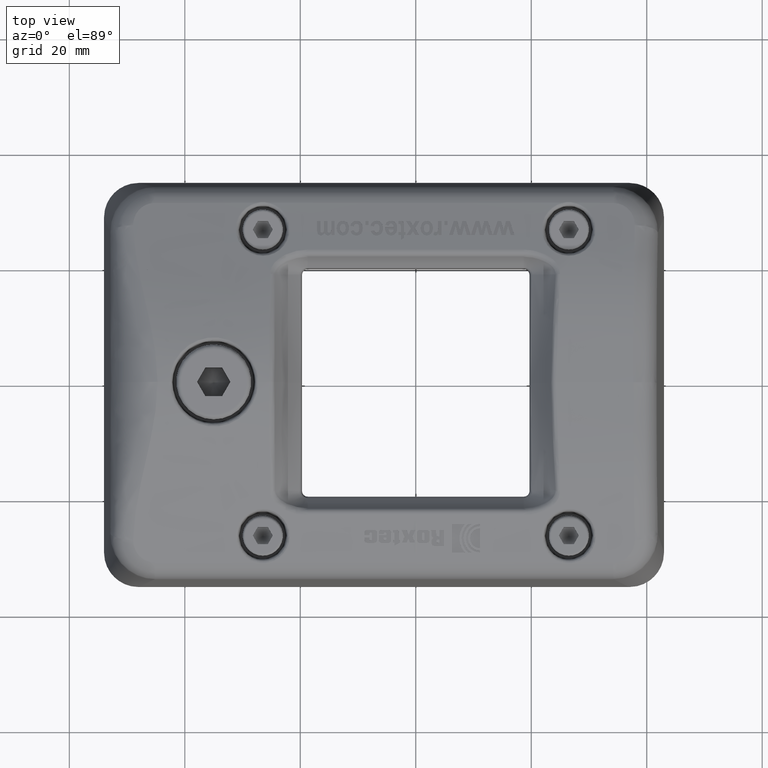
[diagram: clean part render]
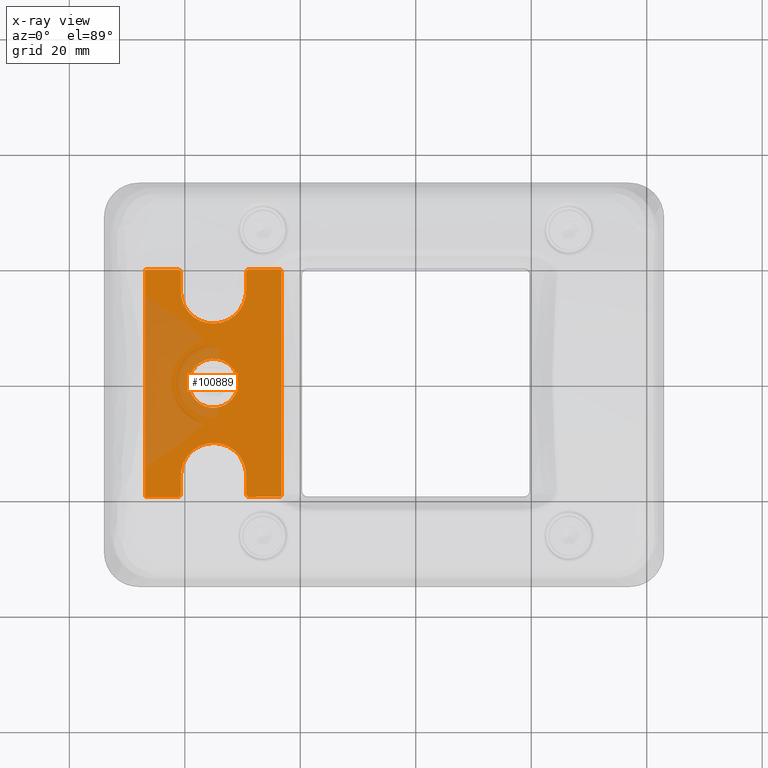
[diagram: x-ray — body ghosted, one internal face saturated and labeled with its STEP entity id]
A machine part, top view, then the same camera in x-ray: the body is ghosted and one INTERNAL B-rep face — a face not visible from any outside direction — is saturated and labeled: STEP entity #100889.
In plain terms, the highlighted planar face has unit normal (0.1736, -0, -0.9848).
Its self-contained STEP definition (entity closure, byte-faithful):
#100500=CARTESIAN_POINT('',(-28.88723744500874,19.700000000000003,-2.507853244163001));
#100501=VERTEX_POINT('',#100500);
#100502=CARTESIAN_POINT('',(-23.537115605238732,19.700000000000003,-1.564482413734001));
#100503=VERTEX_POINT('',#100502);
#100504=CARTESIAN_POINT('',(-28.88723744500874,19.700000000000003,-2.507853244163001));
#100505=DIRECTION('',(0.984807753012213,0.0,0.173648177666903));
#100506=VECTOR('',#100505,5.432656092933582);
#100507=LINE('',#100504,#100506);
#100508=EDGE_CURVE('',#100501,#100503,#100507,.T.);
#100599=CARTESIAN_POINT('',(-41.187085141648737,19.700000000000003,-4.676648251687003));
#100600=VERTEX_POINT('',#100599);
#100607=CARTESIAN_POINT('',(-46.864842272338734,19.700000000000003,-5.677790023736002));
#100608=VERTEX_POINT('',#100607);
#100609=CARTESIAN_POINT('',(-46.864842272338734,19.700000000000003,-5.677790023736002));
#100610=DIRECTION('',(0.984807753012213,0.0,0.173648177666902));
#100611=VECTOR('',#100610,5.765345686326413);
#100612=LINE('',#100609,#100611);
#100613=EDGE_CURVE('',#100608,#100600,#100612,.T.);
#100640=CARTESIAN_POINT('',(-23.237161300618734,19.399121071710002,-1.51159237685));
#100641=VERTEX_POINT('',#100640);
#100648=CARTESIAN_POINT('',(-23.537115605238732,19.700000000000003,-1.564482413734001));
#100649=CARTESIAN_POINT('',(-23.487427088078732,19.700000000000003,-1.555720987528001));
#100650=CARTESIAN_POINT('',(-23.409329994698744,19.678391781670005,-1.541950362849));
#100651=CARTESIAN_POINT('',(-23.321061391408733,19.616656942550005,-1.526386226541001));
#100652=CARTESIAN_POINT('',(-23.259102379888745,19.528206643820003,-1.515461181111001));
#100653=CARTESIAN_POINT('',(-23.237161300618734,19.449576114340005,-1.51159237685));
#100654=CARTESIAN_POINT('',(-23.237161300618734,19.399121071710002,-1.51159237685));
#100655=B_SPLINE_CURVE_WITH_KNOTS('',3,(#100648,#100649,#100650,#100651,#100652,#100653,#100654),.UNSPECIFIED.,.F.,.U.,(4,1,1,1,4),(0.0,0.25,0.5,0.75,1.0),.UNSPECIFIED.);
#100656=EDGE_CURVE('',#100503,#100641,#100655,.T.);
#100661=CARTESIAN_POINT('',(-48.046226320924603,21.670000000000002,-5.886099906081031));
#100662=DIRECTION('',(0.173648177666902,-5.328091E-032,-0.984807753012213));
#100663=DIRECTION('',(-0.984807753012213,1.220328E-031,-0.173648177666902));
#100664=AXIS2_PLACEMENT_3D('',#100661,#100662,#100663);
#100665=PLANE('',#100664);
#100666=ORIENTED_EDGE('',*,*,#100613,.T.);
#100667=CARTESIAN_POINT('',(-40.68716130061874,19.198535119510005,-4.588498190213002));
#100668=VERTEX_POINT('',#100667);
#100669=CARTESIAN_POINT('',(-41.187085141648737,19.700000000000003,-4.676648251687003));
#100670=CARTESIAN_POINT('',(-41.104270946388738,19.700000000000003,-4.662045874675002));
#100671=CARTESIAN_POINT('',(-40.974109124078737,19.663986302790004,-4.639094833545003));
#100672=CARTESIAN_POINT('',(-40.826994785278742,19.561094904250005,-4.613154606364002));
#100673=CARTESIAN_POINT('',(-40.723729766058739,19.413677739690005,-4.594946197313003));
#100674=CARTESIAN_POINT('',(-40.68716130061874,19.282626857230003,-4.588498190213002));
#100675=CARTESIAN_POINT('',(-40.68716130061874,19.198535119510005,-4.588498190213002));
#100676=B_SPLINE_CURVE_WITH_KNOTS('',3,(#100669,#100670,#100671,#100672,#100673,#100674,#100675),.UNSPECIFIED.,.F.,.U.,(4,1,1,1,4),(0.0,0.25,0.5,0.75,1.0),.UNSPECIFIED.);
#100677=EDGE_CURVE('',#100600,#100668,#100676,.T.);
#100678=ORIENTED_EDGE('',*,*,#100677,.T.);
#100679=CARTESIAN_POINT('',(-40.68716130061874,16.000000000770005,-4.588498190213002));
#100680=VERTEX_POINT('',#100679);
#100681=CARTESIAN_POINT('',(-40.68716130061874,19.198535119510005,-4.588498190213002));
#100682=DIRECTION('',(0.0,-1.0,0.0));
#100683=VECTOR('',#100682,3.198535118740001);
#100684=LINE('',#100681,#100683);
#100685=EDGE_CURVE('',#100668,#100680,#100684,.T.);
#100686=ORIENTED_EDGE('',*,*,#100685,.T.);
#100687=CARTESIAN_POINT('',(-29.387161300618736,16.000000000760004,-2.596003308207001));
#100688=VERTEX_POINT('',#100687);
#100689=CARTESIAN_POINT('',(-40.68716130061874,16.000000000770005,-4.588498190213002));
#100690=CARTESIAN_POINT('',(-40.687161300708745,15.334141115110002,-4.588498190229002));
#100691=CARTESIAN_POINT('',(-40.504322761178742,14.255751811850006,-4.556258822597003));
#100692=CARTESIAN_POINT('',(-39.801803903318735,12.889827949820003,-4.432385793500002));
#100693=CARTESIAN_POINT('',(-39.061206975648744,11.976006717120002,-4.301798573321002));
#100694=CARTESIAN_POINT('',(-38.147255881648732,11.235225301120003,-4.140644336401001));
#100695=CARTESIAN_POINT('',(-37.123147942608739,10.708944248990003,-3.960066475590002));
#100696=CARTESIAN_POINT('',(-36.238466996048743,10.459135955900003,-3.804073355394002));
#100697=CARTESIAN_POINT('',(-35.541887459068732,10.364740434970003,-3.681247588813002));
#100698=CARTESIAN_POINT('',(-35.037161300618735,10.342629782520001,-3.592250749211002));
#100699=CARTESIAN_POINT('',(-34.532435142178741,10.364740434960002,-3.503253909608002));
#100700=CARTESIAN_POINT('',(-33.835855605198745,10.459135955900003,-3.380428143028002));
#100701=CARTESIAN_POINT('',(-32.951174658638735,10.708944248990003,-3.224435022832002));
#100702=CARTESIAN_POINT('',(-31.927066719598738,11.235225301120003,-3.043857162021002));
#100703=CARTESIAN_POINT('',(-31.013115625588732,11.976006717110003,-2.882702925100001));
#100704=CARTESIAN_POINT('',(-30.272518697918738,12.889827949810005,-2.752115704921001));
#100705=CARTESIAN_POINT('',(-29.569999840058738,14.255751811840003,-2.628242675824002));
#100706=CARTESIAN_POINT('',(-29.387161300528746,15.334141115100001,-2.596003308191002));
#100707=CARTESIAN_POINT('',(-29.387161300618736,16.000000000760004,-2.596003308207001));
#100708=B_SPLINE_CURVE_WITH_KNOTS('',3,(#100689,#100690,#100691,#100692,#100693,#100694,#100695,#100696,#100697,#100698,#100699,#100700,#100701,#100702,#100703,#100704,#100705,#100706,#100707),.UNSPECIFIED.,.F.,.U.,(4,1,1,1,1,1,1,1,1,1,1,1,1,1,1,1,4),(0.0,0.125,0.1875,0.25,0.3125,0.375,0.4375,0.46875,0.5,0.53125,0.5625,0.625,0.6875,0.75,0.8125,0.875,1.0),.UNSPECIFIED.);
#100709=EDGE_CURVE('',#100680,#100688,#100708,.T.);
#100710=ORIENTED_EDGE('',*,*,#100709,.T.);
#100711=CARTESIAN_POINT('',(-29.387161300618736,19.201612449640006,-2.596003308207001));
#100712=VERTEX_POINT('',#100711);
#100713=CARTESIAN_POINT('',(-29.387161300618736,19.201612449640006,-2.596003308207001));
#100714=DIRECTION('',(0.0,-1.0,0.0));
#100715=VECTOR('',#100714,3.201612448880002);
#100716=LINE('',#100713,#100715);
#100717=EDGE_CURVE('',#100712,#100688,#100716,.T.);
#100718=ORIENTED_EDGE('',*,*,#100717,.F.);
#100719=CARTESIAN_POINT('',(-29.387161300618736,19.201612449640006,-2.596003308207001));
#100720=CARTESIAN_POINT('',(-29.387161300618736,19.285447744410007,-2.596003308207001));
#100721=CARTESIAN_POINT('',(-29.350572846168738,19.415965443620003,-2.589551776505001));
#100722=CARTESIAN_POINT('',(-29.247189434088732,19.562493060090006,-2.571322491599001));
#100723=CARTESIAN_POINT('',(-29.099981430088739,19.664520019660007,-2.545365748717001));
#100724=CARTESIAN_POINT('',(-28.969799093278734,19.700000000000003,-2.522411090325001));
#100725=CARTESIAN_POINT('',(-28.88723744500874,19.700000000000003,-2.507853244163001));
#100726=B_SPLINE_CURVE_WITH_KNOTS('',3,(#100719,#100720,#100721,#100722,#100723,#100724,#100725),.UNSPECIFIED.,.F.,.U.,(4,1,1,1,4),(0.0,0.25,0.5,0.75,1.0),.UNSPECIFIED.);
#100727=EDGE_CURVE('',#100712,#100501,#100726,.T.);
#100728=ORIENTED_EDGE('',*,*,#100727,.T.);
#100729=ORIENTED_EDGE('',*,*,#100508,.T.);
#100730=ORIENTED_EDGE('',*,*,#100656,.T.);
#100731=CARTESIAN_POINT('',(-23.237161300618734,-19.399121071710002,-1.51159237685));
#100732=VERTEX_POINT('',#100731);
#100733=CARTESIAN_POINT('',(-23.237161300618734,19.399121071710002,-1.51159237685));
#100734=DIRECTION('',(0.0,-1.0,0.0));
#100735=VECTOR('',#100734,38.798242143420005);
#100736=LINE('',#100733,#100735);
#100737=EDGE_CURVE('',#100641,#100732,#100736,.T.);
#100738=ORIENTED_EDGE('',*,*,#100737,.T.);
#100739=CARTESIAN_POINT('',(-23.537115605238732,-19.700000000000003,-1.564482413734001));
#100740=VERTEX_POINT('',#100739);
#100741=CARTESIAN_POINT('',(-23.537115605238732,-19.700000000000003,-1.564482413734001));
#100742=CARTESIAN_POINT('',(-23.487427088078732,-19.700000000000003,-1.555720987528001));
#100743=CARTESIAN_POINT('',(-23.409329994698744,-19.678391781670005,-1.541950362849));
#100744=CARTESIAN_POINT('',(-23.321061391408733,-19.616656942550005,-1.526386226541001));
#100745=CARTESIAN_POINT('',(-23.259102379888745,-19.528206643820003,-1.515461181111001));
#100746=CARTESIAN_POINT('',(-23.237161300618734,-19.449576114340005,-1.51159237685));
#100747=CARTESIAN_POINT('',(-23.237161300618734,-19.399121071710002,-1.51159237685));
#100748=B_SPLINE_CURVE_WITH_KNOTS('',3,(#100741,#100742,#100743,#100744,#100745,#100746,#100747),.UNSPECIFIED.,.F.,.U.,(4,1,1,1,4),(0.0,0.25,0.5,0.75,1.0),.UNSPECIFIED.);
#100749=EDGE_CURVE('',#100740,#100732,#100748,.T.);
#100750=ORIENTED_EDGE('',*,*,#100749,.F.);
#100751=CARTESIAN_POINT('',(-28.88723744500874,-19.700000000000003,-2.507853244163001));
#100752=VERTEX_POINT('',#100751);
#100753=CARTESIAN_POINT('',(-28.88723744500874,-19.700000000000003,-2.507853244163001));
#100754=DIRECTION('',(0.984807753012213,0.0,0.173648177666903));
#100755=VECTOR('',#100754,5.432656092933582);
#100756=LINE('',#100753,#100755);
#100757=EDGE_CURVE('',#100752,#100740,#100756,.T.);
#100758=ORIENTED_EDGE('',*,*,#100757,.F.);
#100759=CARTESIAN_POINT('',(-29.387161300618736,-19.201612449640006,-2.596003308207001));
#100760=VERTEX_POINT('',#100759);
#100761=CARTESIAN_POINT('',(-29.387161300618736,-19.201612449640006,-2.596003308207001));
#100762=CARTESIAN_POINT('',(-29.387161300618736,-19.285447744410007,-2.596003308207001));
#100763=CARTESIAN_POINT('',(-29.350572846168738,-19.415965443620003,-2.589551776505001));
#100764=CARTESIAN_POINT('',(-29.247189434088732,-19.562493060090006,-2.571322491599001));
#100765=CARTESIAN_POINT('',(-29.099981430088739,-19.664520019660007,-2.545365748717001));
#100766=CARTESIAN_POINT('',(-28.969799093278734,-19.700000000000003,-2.522411090325001));
#100767=CARTESIAN_POINT('',(-28.88723744500874,-19.700000000000003,-2.507853244163001));
#100768=B_SPLINE_CURVE_WITH_KNOTS('',3,(#100761,#100762,#100763,#100764,#100765,#100766,#100767),.UNSPECIFIED.,.F.,.U.,(4,1,1,1,4),(0.0,0.25,0.5,0.75,1.0),.UNSPECIFIED.);
#100769=EDGE_CURVE('',#100760,#100752,#100768,.T.);
#100770=ORIENTED_EDGE('',*,*,#100769,.F.);
#100771=CARTESIAN_POINT('',(-29.387161300618736,-16.000000000760004,-2.596003308207001));
#100772=VERTEX_POINT('',#100771);
#100773=CARTESIAN_POINT('',(-29.387161300618736,-19.201612449640006,-2.596003308207001));
#100774=DIRECTION('',(0.0,1.0,0.0));
#100775=VECTOR('',#100774,3.201612448880002);
#100776=LINE('',#100773,#100775);
#100777=EDGE_CURVE('',#100760,#100772,#100776,.T.);
#100778=ORIENTED_EDGE('',*,*,#100777,.T.);
#100779=CARTESIAN_POINT('',(-40.68716130061874,-16.000000000770005,-4.588498190213002));
#100780=VERTEX_POINT('',#100779);
#100781=CARTESIAN_POINT('',(-40.68716130061874,-16.000000000770005,-4.588498190213002));
#100782=CARTESIAN_POINT('',(-40.687161300708745,-15.334141115110002,-4.588498190229002));
#100783=CARTESIAN_POINT('',(-40.504322761178742,-14.255751811850006,-4.556258822597003));
#100784=CARTESIAN_POINT('',(-39.801803903318735,-12.889827949820003,-4.432385793500002));
#100785=CARTESIAN_POINT('',(-39.061206975648744,-11.976006717120002,-4.301798573321002));
#100786=CARTESIAN_POINT('',(-38.147255881648732,-11.235225301120003,-4.140644336401001));
#100787=CARTESIAN_POINT('',(-37.123147942608739,-10.708944248990003,-3.960066475590002));
#100788=CARTESIAN_POINT('',(-36.238466996048743,-10.459135955900003,-3.804073355394002));
#100789=CARTESIAN_POINT('',(-35.541887459068732,-10.364740434970003,-3.681247588813002));
#100790=CARTESIAN_POINT('',(-35.037161300618735,-10.342629782520001,-3.592250749211002));
#100791=CARTESIAN_POINT('',(-34.532435142178741,-10.364740434960002,-3.503253909608002));
#100792=CARTESIAN_POINT('',(-33.835855605198745,-10.459135955900003,-3.380428143028002));
#100793=CARTESIAN_POINT('',(-32.951174658638735,-10.708944248990003,-3.224435022832002));
#100794=CARTESIAN_POINT('',(-31.927066719598738,-11.235225301120003,-3.043857162021002));
#100795=CARTESIAN_POINT('',(-31.013115625588732,-11.976006717110003,-2.882702925100001));
#100796=CARTESIAN_POINT('',(-30.272518697918738,-12.889827949810005,-2.752115704921001));
#100797=CARTESIAN_POINT('',(-29.569999840058738,-14.255751811840003,-2.628242675824002));
#100798=CARTESIAN_POINT('',(-29.387161300528746,-15.334141115100001,-2.596003308191002));
#100799=CARTESIAN_POINT('',(-29.387161300618736,-16.000000000760004,-2.596003308207001));
#100800=B_SPLINE_CURVE_WITH_KNOTS('',3,(#100781,#100782,#100783,#100784,#100785,#100786,#100787,#100788,#100789,#100790,#100791,#100792,#100793,#100794,#100795,#100796,#100797,#100798,#100799),.UNSPECIFIED.,.F.,.U.,(4,1,1,1,1,1,1,1,1,1,1,1,1,1,1,1,4),(0.0,0.125,0.1875,0.25,0.3125,0.375,0.4375,0.46875,0.5,0.53125,0.5625,0.625,0.6875,0.75,0.8125,0.875,1.0),.UNSPECIFIED.);
#100801=EDGE_CURVE('',#100780,#100772,#100800,.T.);
#100802=ORIENTED_EDGE('',*,*,#100801,.F.);
#100803=CARTESIAN_POINT('',(-40.68716130061874,-19.198535119510005,-4.588498190213002));
#100804=VERTEX_POINT('',#100803);
#100805=CARTESIAN_POINT('',(-40.68716130061874,-19.198535119510005,-4.588498190213002));
#100806=DIRECTION('',(0.0,1.0,0.0));
#100807=VECTOR('',#100806,3.198535118740001);
#100808=LINE('',#100805,#100807);
#100809=EDGE_CURVE('',#100804,#100780,#100808,.T.);
#100810=ORIENTED_EDGE('',*,*,#100809,.F.);
#100811=CARTESIAN_POINT('',(-41.187085141648737,-19.700000000000003,-4.676648251687003));
#100812=VERTEX_POINT('',#100811);
#100813=CARTESIAN_POINT('',(-41.187085141648737,-19.700000000000003,-4.676648251687003));
#100814=CARTESIAN_POINT('',(-41.104270946388738,-19.700000000000003,-4.662045874675002));
#100815=CARTESIAN_POINT('',(-40.974109124078737,-19.663986302790004,-4.639094833545003));
#100816=CARTESIAN_POINT('',(-40.826994785278742,-19.561094904250005,-4.613154606364002));
#100817=CARTESIAN_POINT('',(-40.723729766058739,-19.413677739690005,-4.594946197313003));
#100818=CARTESIAN_POINT('',(-40.68716130061874,-19.282626857230003,-4.588498190213002));
#100819=CARTESIAN_POINT('',(-40.68716130061874,-19.198535119510005,-4.588498190213002));
#100820=B_SPLINE_CURVE_WITH_KNOTS('',3,(#100813,#100814,#100815,#100816,#100817,#100818,#100819),.UNSPECIFIED.,.F.,.U.,(4,1,1,1,4),(0.0,0.25,0.5,0.75,1.0),.UNSPECIFIED.);
#100821=EDGE_CURVE('',#100812,#100804,#100820,.T.);
#100822=ORIENTED_EDGE('',*,*,#100821,.F.);
#100823=CARTESIAN_POINT('',(-46.864842272338734,-19.700000000000003,-5.677790023736002));
#100824=VERTEX_POINT('',#100823);
#100825=CARTESIAN_POINT('',(-46.864842272338734,-19.700000000000003,-5.677790023736002));
#100826=DIRECTION('',(0.984807753012213,0.0,0.173648177666902));
#100827=VECTOR('',#100826,5.765345686326413);
#100828=LINE('',#100825,#100827);
#100829=EDGE_CURVE('',#100824,#100812,#100828,.T.);
#100830=ORIENTED_EDGE('',*,*,#100829,.F.);
#100831=CARTESIAN_POINT('',(-46.864842272338734,-19.700000000000003,-5.677790023736002));
#100832=DIRECTION('',(0.0,1.0,0.0));
#100833=VECTOR('',#100832,39.400000000000006);
#100834=LINE('',#100831,#100833);
#100835=EDGE_CURVE('',#100824,#100608,#100834,.T.);
#100836=ORIENTED_EDGE('',*,*,#100835,.T.);
#100837=EDGE_LOOP('',(#100666,#100678,#100686,#100710,#100718,#100728,#100729,#100730,#100738,#100750,#100758,#100770,#100778,#100802,#100810,#100822,#100830,#100836));
#100838=FACE_OUTER_BOUND('',#100837,.T.);
#100839=CARTESIAN_POINT('',(-30.787161300618735,3.182012E-014,-2.842861081199002));
#100840=VERTEX_POINT('',#100839);
#100841=CARTESIAN_POINT('',(-39.287161300618735,-3.446209E-014,-4.341640417221003));
#100842=VERTEX_POINT('',#100841);
#100843=CARTESIAN_POINT('',(-30.787161300618735,9.488941E-014,-2.842861081199002));
#100844=CARTESIAN_POINT('',(-30.787161300618735,-0.5008673033404,-2.842861081199002));
#100845=CARTESIAN_POINT('',(-30.924694715398733,-1.312045097742,-2.867111932974001));
#100846=CARTESIAN_POINT('',(-31.453138104108742,-2.339509949563001,-2.960290760180002));
#100847=CARTESIAN_POINT('',(-32.010224288638739,-3.026897602370001,-3.058520085093002));
#100848=CARTESIAN_POINT('',(-32.69770962479874,-3.584122561212002,-3.179742298700002));
#100849=CARTESIAN_POINT('',(-33.468056304558743,-3.979997688855001,-3.315575202839001));
#100850=CARTESIAN_POINT('',(-34.133524273148737,-4.167906581858001,-3.432915160500001));
#100851=CARTESIAN_POINT('',(-34.657500031018742,-4.238912062196001,-3.525306223850002));
#100852=CARTESIAN_POINT('',(-35.037161300618735,-4.255543968902002,-3.592250749210002));
#100853=CARTESIAN_POINT('',(-35.416822570218741,-4.238912062196001,-3.659195274570002));
#100854=CARTESIAN_POINT('',(-35.940798328088732,-4.167906581858001,-3.751586337920001));
#100855=CARTESIAN_POINT('',(-36.60626629667874,-3.979997688855001,-3.868926295581002));
#100856=CARTESIAN_POINT('',(-37.376612976438736,-3.584122561213001,-4.004759199721001));
#100857=CARTESIAN_POINT('',(-38.06409831259873,-3.026897602370001,-4.125981413327001));
#100858=CARTESIAN_POINT('',(-38.621184497128738,-2.339509949563001,-4.224210738240003));
#100859=CARTESIAN_POINT('',(-39.14962788583874,-1.312045097742,-4.317389565446002));
#100860=CARTESIAN_POINT('',(-39.287161300618735,-0.5008673033406,-4.341640417221003));
#100861=CARTESIAN_POINT('',(-39.287161300618735,-1.030287E-013,-4.341640417221003));
#100862=B_SPLINE_CURVE_WITH_KNOTS('',3,(#100843,#100844,#100845,#100846,#100847,#100848,#100849,#100850,#100851,#100852,#100853,#100854,#100855,#100856,#100857,#100858,#100859,#100860,#100861),.UNSPECIFIED.,.F.,.U.,(4,1,1,1,1,1,1,1,1,1,1,1,1,1,1,1,4),(0.0,0.125,0.1875,0.25,0.3125,0.375,0.4375,0.46875,0.5,0.53125,0.5625,0.625,0.6875,0.75,0.8125,0.875,1.0),.UNSPECIFIED.);
#100863=EDGE_CURVE('',#100840,#100842,#100862,.T.);
#100864=ORIENTED_EDGE('',*,*,#100863,.F.);
#100865=CARTESIAN_POINT('',(-30.787161300618735,9.488941E-014,-2.842861081199002));
#100866=CARTESIAN_POINT('',(-30.787161300618735,0.5008673033406,-2.842861081199002));
#100867=CARTESIAN_POINT('',(-30.924694715398733,1.312045097742,-2.867111932974001));
#100868=CARTESIAN_POINT('',(-31.453138104108742,2.339509949563001,-2.960290760180002));
#100869=CARTESIAN_POINT('',(-32.010224288638739,3.026897602370001,-3.058520085093002));
#100870=CARTESIAN_POINT('',(-32.69770962479874,3.584122561213001,-3.179742298700002));
#100871=CARTESIAN_POINT('',(-33.468056304558743,3.979997688855001,-3.315575202839001));
#100872=CARTESIAN_POINT('',(-34.133524273148737,4.167906581858001,-3.432915160500001));
#100873=CARTESIAN_POINT('',(-34.657500031018742,4.238912062196001,-3.525306223850002));
#100874=CARTESIAN_POINT('',(-35.037161300618735,4.255543968902002,-3.592250749210002));
#100875=CARTESIAN_POINT('',(-35.416822570218741,4.238912062196001,-3.659195274570002));
#100876=CARTESIAN_POINT('',(-35.940798328088732,4.167906581858001,-3.751586337920001));
#100877=CARTESIAN_POINT('',(-36.60626629667874,3.979997688855001,-3.868926295581002));
#100878=CARTESIAN_POINT('',(-37.376612976438736,3.584122561212002,-4.004759199721001));
#100879=CARTESIAN_POINT('',(-38.06409831259873,3.026897602370001,-4.125981413327001));
#100880=CARTESIAN_POINT('',(-38.621184497128738,2.339509949563001,-4.224210738240003));
#100881=CARTESIAN_POINT('',(-39.14962788583874,1.312045097742,-4.317389565446002));
#100882=CARTESIAN_POINT('',(-39.287161300618735,0.5008673033404,-4.341640417221003));
#100883=CARTESIAN_POINT('',(-39.287161300618735,-1.039169E-013,-4.341640417221003));
#100884=B_SPLINE_CURVE_WITH_KNOTS('',3,(#100865,#100866,#100867,#100868,#100869,#100870,#100871,#100872,#100873,#100874,#100875,#100876,#100877,#100878,#100879,#100880,#100881,#100882,#100883),.UNSPECIFIED.,.F.,.U.,(4,1,1,1,1,1,1,1,1,1,1,1,1,1,1,1,4),(0.0,0.125,0.1875,0.25,0.3125,0.375,0.4375,0.46875,0.5,0.53125,0.5625,0.625,0.6875,0.75,0.8125,0.875,1.0),.UNSPECIFIED.);
#100885=EDGE_CURVE('',#100840,#100842,#100884,.T.);
#100886=ORIENTED_EDGE('',*,*,#100885,.T.);
#100887=EDGE_LOOP('',(#100864,#100886));
#100888=FACE_BOUND('',#100887,.T.);
#100889=ADVANCED_FACE('',(#100838,#100888),#100665,.T.);